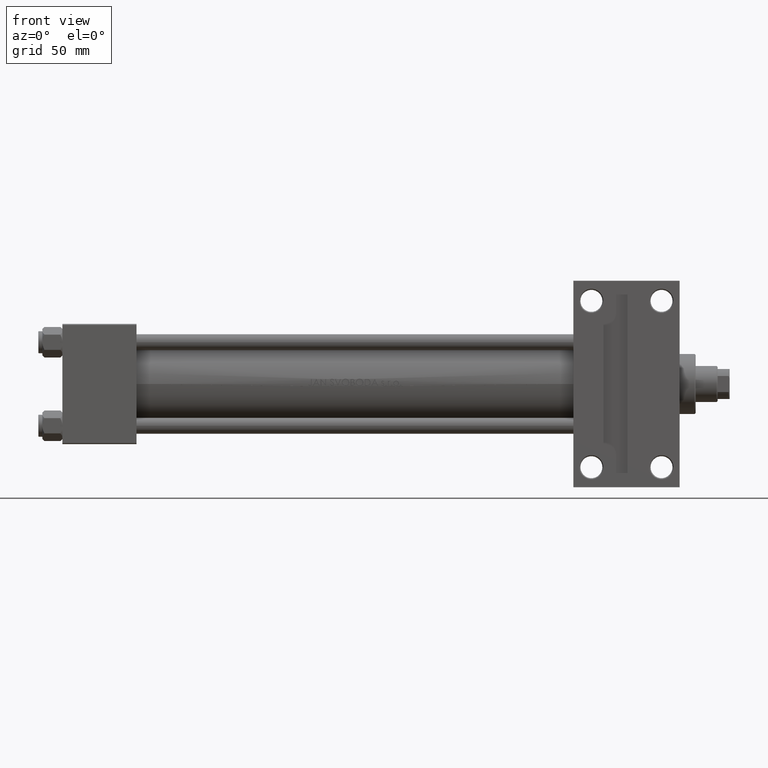
[diagram: clean part render]
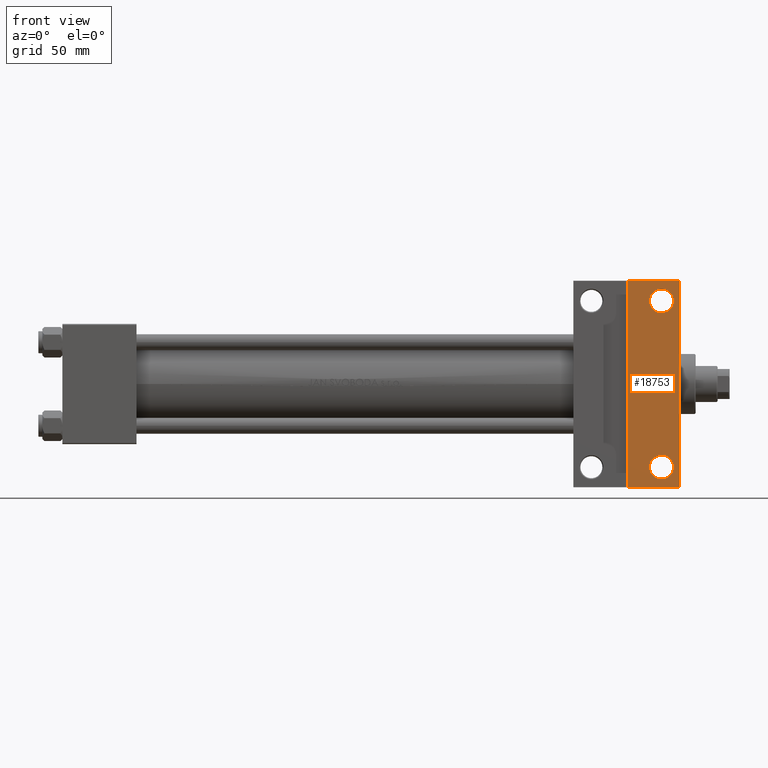
[diagram: same view with one face highlighted and labeled with its STEP entity id]
A machine part, front view. The second image highlights one B-rep face of the part: STEP entity #18753.
In plain terms, the highlighted planar face has unit normal (0, -1, -0).
Its self-contained STEP definition (entity closure, byte-faithful):
#108 = VECTOR ( 'NONE', #21015, 1000.000000000000000 ) ;
#221 = CARTESIAN_POINT ( 'NONE',  ( 304.9994999999998413, -41.50000000000000000, -30.00000000000000000 ) ) ;
#1069 = DIRECTION ( 'NONE',  ( 0.000000000000000000, 1.000000000000000000, 0.000000000000000000 ) ) ;
#1858 = VECTOR ( 'NONE', #13358, 1000.000000000000000 ) ;
#2009 = CARTESIAN_POINT ( 'NONE',  ( 298.9999999999999432, -41.50000000000000000, -30.00000000000000000 ) ) ;
#2283 = LINE ( 'NONE', #31872, #21193 ) ;
#2914 = EDGE_CURVE ( 'NONE', #20823, #27140, #10604, .T. ) ;
#3766 = EDGE_CURVE ( 'NONE', #44331, #5131, #25174, .T. ) ;
#3923 = AXIS2_PLACEMENT_3D ( 'NONE', #2009, #43168, #35279 ) ;
#4411 = ORIENTED_EDGE ( 'NONE', *, *, #48589, .T. ) ;
#4497 = FACE_BOUND ( 'NONE', #45452, .T. ) ;
#5131 = VERTEX_POINT ( 'NONE', #221 ) ;
#6425 = AXIS2_PLACEMENT_3D ( 'NONE', #35649, #17391, #46741 ) ;
#8606 = ORIENTED_EDGE ( 'NONE', *, *, #42443, .T. ) ;
#8680 = DIRECTION ( 'NONE',  ( -0.000000000000000000, -1.156482317317871478E-16, 1.000000000000000000 ) ) ;
#9873 = DIRECTION ( 'NONE',  ( 0.000000000000000000, -1.000000000000000000, -1.156482317317871478E-16 ) ) ;
#10057 = ORIENTED_EDGE ( 'NONE', *, *, #34586, .T. ) ;
#10530 = VERTEX_POINT ( 'NONE', #31415 ) ;
#10604 = LINE ( 'NONE', #43409, #26013 ) ;
#10916 = CARTESIAN_POINT ( 'NONE',  ( 308.0000000000000000, 30.00000000000000000, -29.99999999999999289 ) ) ;
#11344 = ORIENTED_EDGE ( 'NONE', *, *, #3766, .T. ) ;
#11876 = EDGE_CURVE ( 'NONE', #10530, #21246, #47138, .T. ) ;
#12968 = ORIENTED_EDGE ( 'NONE', *, *, #2914, .T. ) ;
#13358 = DIRECTION ( 'NONE',  ( -0.000000000000000000, -1.000000000000000000, -0.000000000000000000 ) ) ;
#13538 = AXIS2_PLACEMENT_3D ( 'NONE', #14131, #29431, #47913 ) ;
#13801 = ORIENTED_EDGE ( 'NONE', *, *, #11876, .F. ) ;
#14131 = CARTESIAN_POINT ( 'NONE',  ( 298.9999999999999432, 41.50000000000000000, -29.99999999999999289 ) ) ;
#16311 = CARTESIAN_POINT ( 'NONE',  ( 304.9994999999998413, 41.50000000000000000, -29.99999999999999289 ) ) ;
#17035 = ORIENTED_EDGE ( 'NONE', *, *, #30498, .T. ) ;
#17391 = DIRECTION ( 'NONE',  ( -0.000000000000000000, -1.156482317317871478E-16, 1.000000000000000000 ) ) ;
#17564 = EDGE_CURVE ( 'NONE', #30554, #22360, #44236, .T. ) ;
#18013 = CARTESIAN_POINT ( 'NONE',  ( 282.0000000000000000, -51.49999999999997158, -29.99999999999999645 ) ) ;
#18753 = ADVANCED_FACE ( 'NONE', ( #38277, #4497, #37295 ), #19519, .T. ) ;
#19293 = CARTESIAN_POINT ( 'NONE',  ( 298.9999999999999432, -41.50000000000000000, -30.00000000000000000 ) ) ;
#19519 = PLANE ( 'NONE',  #31757 ) ;
#20823 = VERTEX_POINT ( 'NONE', #42768 ) ;
#21015 = DIRECTION ( 'NONE',  ( 1.000000000000000000, -2.618450529776313247E-16, 0.000000000000000000 ) ) ;
#21193 = VECTOR ( 'NONE', #46660, 1000.000000000000000 ) ;
#21246 = VERTEX_POINT ( 'NONE', #18013 ) ;
#21370 = CIRCLE ( 'NONE', #6425, 5.999499999999935440 ) ;
#22360 = VERTEX_POINT ( 'NONE', #46835 ) ;
#22638 = AXIS2_PLACEMENT_3D ( 'NONE', #19293, #8680, #1069 ) ;
#23243 = EDGE_LOOP ( 'NONE', ( #13801, #8606, #12968, #10057 ) ) ;
#25174 = CIRCLE ( 'NONE', #3923, 5.999499999999935440 ) ;
#25945 = DIRECTION ( 'NONE',  ( 0.000000000000000000, 1.156482317317871478E-16, -1.000000000000000000 ) ) ;
#26013 = VECTOR ( 'NONE', #9873, 1000.000000000000000 ) ;
#27140 = VERTEX_POINT ( 'NONE', #27910 ) ;
#27910 = CARTESIAN_POINT ( 'NONE',  ( 308.0000000000000000, -51.50000000000002132, -29.99999999999999645 ) ) ;
#29431 = DIRECTION ( 'NONE',  ( -0.000000000000000000, -1.156482317317871478E-16, 1.000000000000000000 ) ) ;
#30498 = EDGE_CURVE ( 'NONE', #5131, #44331, #33669, .T. ) ;
#30554 = VERTEX_POINT ( 'NONE', #16311 ) ;
#31415 = CARTESIAN_POINT ( 'NONE',  ( 282.0000000000000000, 51.49999999999997868, -29.99999999999999645 ) ) ;
#31757 = AXIS2_PLACEMENT_3D ( 'NONE', #10916, #25945, #41003 ) ;
#31872 = CARTESIAN_POINT ( 'NONE',  ( 255.0000000000000000, -51.50000000000002132, -29.99999999999999645 ) ) ;
#33669 = CIRCLE ( 'NONE', #22638, 5.999499999999935440 ) ;
#34586 = EDGE_CURVE ( 'NONE', #27140, #21246, #2283, .T. ) ;
#35104 = LINE ( 'NONE', #42755, #108 ) ;
#35279 = DIRECTION ( 'NONE',  ( 0.000000000000000000, 1.000000000000000000, 0.000000000000000000 ) ) ;
#35649 = CARTESIAN_POINT ( 'NONE',  ( 298.9999999999999432, 41.50000000000000000, -29.99999999999999289 ) ) ;
#37295 = FACE_BOUND ( 'NONE', #45969, .T. ) ;
#38277 = FACE_OUTER_BOUND ( 'NONE', #23243, .T. ) ;
#38979 = ORIENTED_EDGE ( 'NONE', *, *, #17564, .T. ) ;
#39008 = CARTESIAN_POINT ( 'NONE',  ( 282.0000000000000000, -51.49999999999997158, -29.99999999999999645 ) ) ;
#40515 = CARTESIAN_POINT ( 'NONE',  ( 293.0004999999999882, -41.50000000000000000, -30.00000000000000000 ) ) ;
#41003 = DIRECTION ( 'NONE',  ( 0.000000000000000000, 1.000000000000000000, 1.156482317317871478E-16 ) ) ;
#42443 = EDGE_CURVE ( 'NONE', #10530, #20823, #35104, .T. ) ;
#42755 = CARTESIAN_POINT ( 'NONE',  ( 255.0000000000000000, 51.49999999999997868, -29.99999999999999645 ) ) ;
#42768 = CARTESIAN_POINT ( 'NONE',  ( 308.0000000000000000, 51.49999999999996447, -29.99999999999999645 ) ) ;
#43168 = DIRECTION ( 'NONE',  ( -0.000000000000000000, -1.156482317317871478E-16, 1.000000000000000000 ) ) ;
#43409 = CARTESIAN_POINT ( 'NONE',  ( 308.0000000000000000, 30.00000000000000000, -29.99999999999999289 ) ) ;
#44236 = CIRCLE ( 'NONE', #13538, 5.999499999999935440 ) ;
#44331 = VERTEX_POINT ( 'NONE', #40515 ) ;
#45452 = EDGE_LOOP ( 'NONE', ( #11344, #17035 ) ) ;
#45969 = EDGE_LOOP ( 'NONE', ( #4411, #38979 ) ) ;
#46660 = DIRECTION ( 'NONE',  ( -1.000000000000000000, -0.000000000000000000, -0.000000000000000000 ) ) ;
#46741 = DIRECTION ( 'NONE',  ( 0.000000000000000000, 1.000000000000000000, 0.000000000000000000 ) ) ;
#46835 = CARTESIAN_POINT ( 'NONE',  ( 293.0004999999999882, 41.50000000000000000, -29.99999999999999289 ) ) ;
#47138 = LINE ( 'NONE', #39008, #1858 ) ;
#47913 = DIRECTION ( 'NONE',  ( 0.000000000000000000, 1.000000000000000000, 0.000000000000000000 ) ) ;
#48589 = EDGE_CURVE ( 'NONE', #22360, #30554, #21370, .T. ) ;